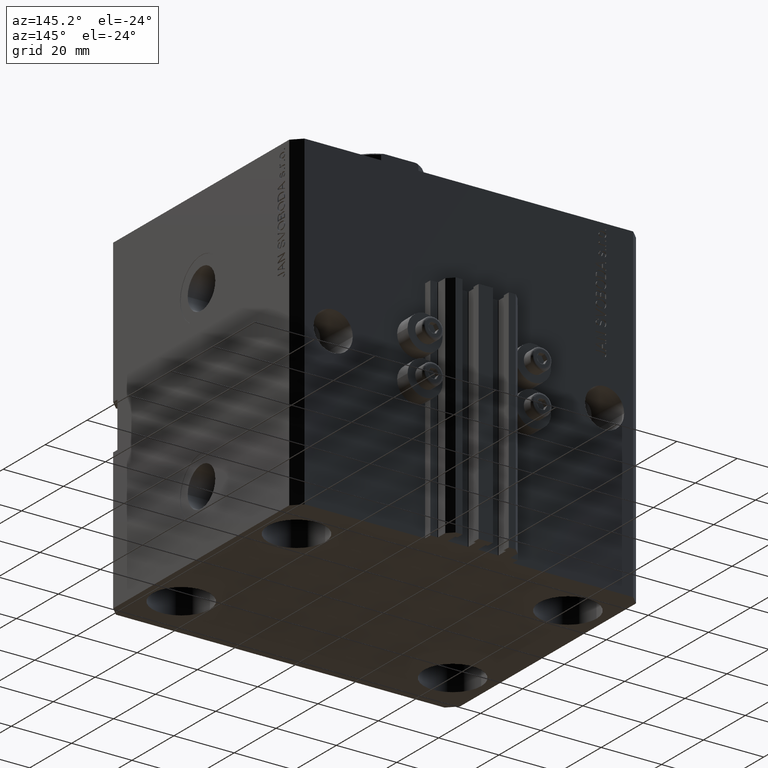
[diagram: clean part render]
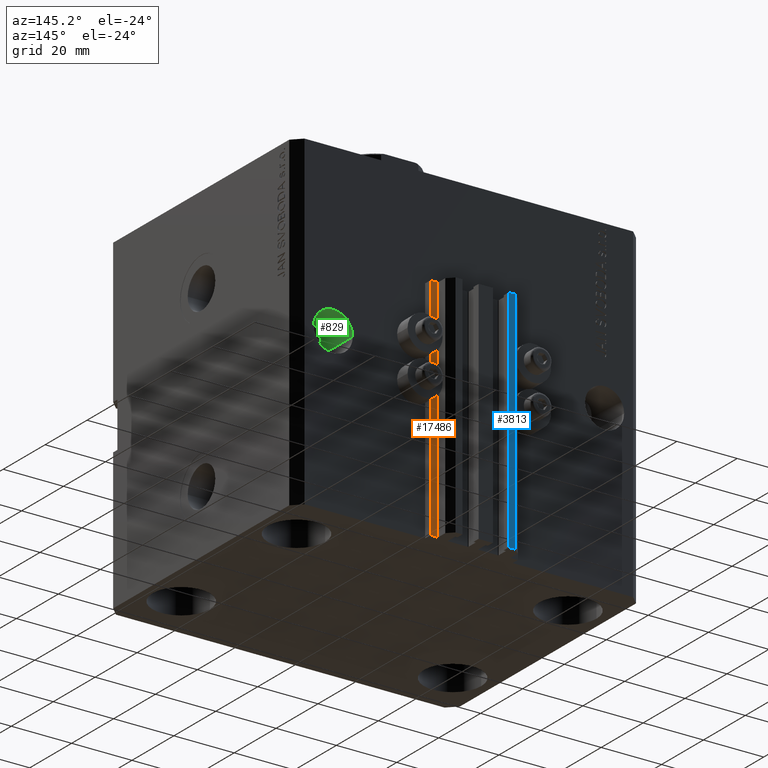
[diagram: same view with three faces highlighted in distinct colors, each labeled with its STEP entity id]
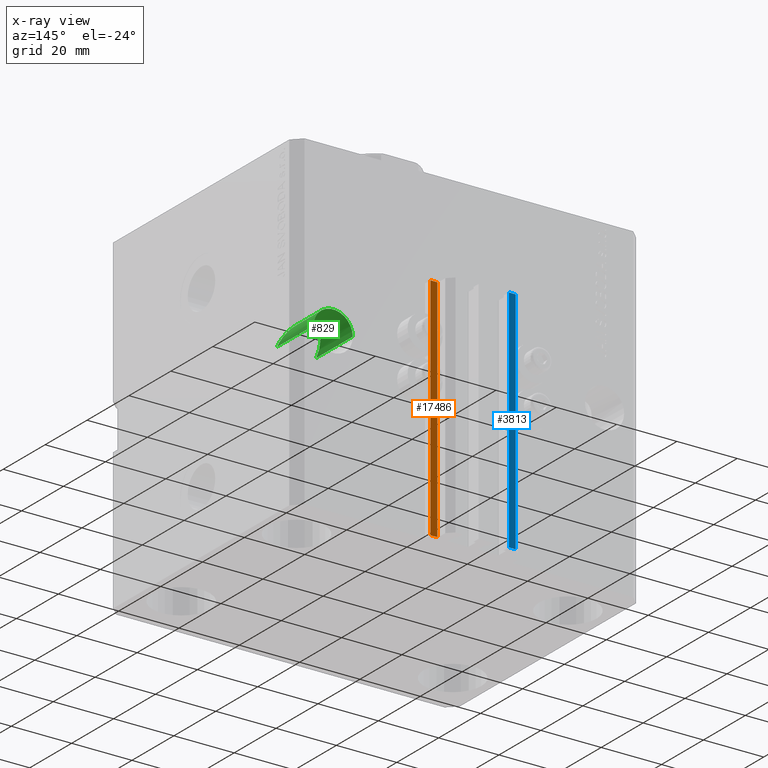
[diagram: x-ray of the same camera — body ghosted, the three highlighted faces saturated]
A machine part, auxiliary view with three faces highlighted in distinct colors.
The next image is the same camera in x-ray (body ghosted, the three faces saturated) — at least one of them is partly hidden behind the body in this view.
Their STEP definitions:

[orange] entity #17486 — the highlighted planar face has unit normal (0, 1, 0).
#149 = DIRECTION ( 'NONE',  ( 0.000000000000000000, 0.000000000000000000, 1.000000000000000000 ) ) ;
#1585 = DIRECTION ( 'NONE',  ( -1.000000000000000000, 0.000000000000000000, 0.000000000000000000 ) ) ;
#2023 = AXIS2_PLACEMENT_3D ( 'NONE', #47372, #28466, #24726 ) ;
#2182 = VERTEX_POINT ( 'NONE', #18523 ) ;
#2944 = VERTEX_POINT ( 'NONE', #44160 ) ;
#5608 = FACE_OUTER_BOUND ( 'NONE', #24364, .T. ) ;
#10474 = DIRECTION ( 'NONE',  ( -1.000000000000000000, 0.000000000000000000, 0.000000000000000000 ) ) ;
#12711 = CARTESIAN_POINT ( 'NONE',  ( 14.49999999999999645, 47.50000000000001421, -109.0000000000000000 ) ) ;
#13397 = ORIENTED_EDGE ( 'NONE', *, *, #26921, .T. ) ;
#13442 = LINE ( 'NONE', #12711, #29292 ) ;
#15659 = VECTOR ( 'NONE', #1585, 1000.000000000000000 ) ;
#17486 = ADVANCED_FACE ( 'NONE', ( #5608 ), #20760, .T. ) ;
#18523 = CARTESIAN_POINT ( 'NONE',  ( 12.20000000000000107, 47.50000000000001421, -33.00000000000000000 ) ) ;
#18813 = LINE ( 'NONE', #29747, #29234 ) ;
#20760 = PLANE ( 'NONE',  #2023 ) ;
#20899 = EDGE_CURVE ( 'NONE', #28664, #2944, #36625, .T. ) ;
#21664 = CARTESIAN_POINT ( 'NONE',  ( 14.49999999999999645, 47.50000000000001421, -33.00000000000000000 ) ) ;
#22314 = EDGE_CURVE ( 'NONE', #25018, #2182, #36367, .T. ) ;
#24022 = ORIENTED_EDGE ( 'NONE', *, *, #20899, .T. ) ;
#24364 = EDGE_LOOP ( 'NONE', ( #30309, #27296, #24022, #13397 ) ) ;
#24457 = CARTESIAN_POINT ( 'NONE',  ( 14.49999999999999645, 47.50000000000001421, -109.0000000000000000 ) ) ;
#24726 = DIRECTION ( 'NONE',  ( 0.000000000000000000, 0.000000000000000000, 1.000000000000000000 ) ) ;
#25018 = VERTEX_POINT ( 'NONE', #45397 ) ;
#26921 = EDGE_CURVE ( 'NONE', #2944, #2182, #18813, .T. ) ;
#27296 = ORIENTED_EDGE ( 'NONE', *, *, #28774, .F. ) ;
#28466 = DIRECTION ( 'NONE',  ( 0.000000000000000000, 1.000000000000000000, -0.000000000000000000 ) ) ;
#28664 = VERTEX_POINT ( 'NONE', #41839 ) ;
#28774 = EDGE_CURVE ( 'NONE', #28664, #25018, #13442, .T. ) ;
#29234 = VECTOR ( 'NONE', #149, 1000.000000000000000 ) ;
#29292 = VECTOR ( 'NONE', #35348, 1000.000000000000000 ) ;
#29747 = CARTESIAN_POINT ( 'NONE',  ( 12.20000000000000107, 47.50000000000001421, -109.0000000000000000 ) ) ;
#30309 = ORIENTED_EDGE ( 'NONE', *, *, #22314, .F. ) ;
#35348 = DIRECTION ( 'NONE',  ( 0.000000000000000000, 0.000000000000000000, 1.000000000000000000 ) ) ;
#36367 = LINE ( 'NONE', #21664, #38741 ) ;
#36625 = LINE ( 'NONE', #24457, #15659 ) ;
#38741 = VECTOR ( 'NONE', #10474, 1000.000000000000000 ) ;
#41839 = CARTESIAN_POINT ( 'NONE',  ( 14.49999999999999645, 47.50000000000001421, -109.0000000000000000 ) ) ;
#44160 = CARTESIAN_POINT ( 'NONE',  ( 12.20000000000000107, 47.50000000000001421, -109.0000000000000000 ) ) ;
#45397 = CARTESIAN_POINT ( 'NONE',  ( 14.49999999999999645, 47.50000000000001421, -33.00000000000000000 ) ) ;
#47372 = CARTESIAN_POINT ( 'NONE',  ( 14.49999999999999645, 47.50000000000001421, -109.0000000000000000 ) ) ;

[blue] entity #3813 — the highlighted planar face has unit normal (0, 1, 0).
#1906 = DIRECTION ( 'NONE',  ( 0.000000000000000000, 1.000000000000000000, -0.000000000000000000 ) ) ;
#2082 = EDGE_CURVE ( 'NONE', #15609, #33903, #47872, .T. ) ;
#2312 = VERTEX_POINT ( 'NONE', #28116 ) ;
#3813 = ADVANCED_FACE ( 'NONE', ( #36227 ), #16574, .T. ) ;
#5648 = ORIENTED_EDGE ( 'NONE', *, *, #45770, .T. ) ;
#5867 = CARTESIAN_POINT ( 'NONE',  ( -7.650000000000002132, 52.99999999999999289, -109.0000000000000000 ) ) ;
#7344 = EDGE_LOOP ( 'NONE', ( #11896, #38226, #5648, #32292 ) ) ;
#8630 = DIRECTION ( 'NONE',  ( 0.000000000000000000, 0.000000000000000000, 1.000000000000000000 ) ) ;
#11896 = ORIENTED_EDGE ( 'NONE', *, *, #24943, .F. ) ;
#13337 = DIRECTION ( 'NONE',  ( -1.000000000000000000, 0.000000000000000000, 0.000000000000000000 ) ) ;
#13565 = VECTOR ( 'NONE', #21747, 1000.000000000000000 ) ;
#15609 = VERTEX_POINT ( 'NONE', #24649 ) ;
#16574 = PLANE ( 'NONE',  #24702 ) ;
#16822 = CARTESIAN_POINT ( 'NONE',  ( -7.650000000000002132, 52.99999999999999289, -33.00000000000000000 ) ) ;
#19209 = VERTEX_POINT ( 'NONE', #44752 ) ;
#21054 = LINE ( 'NONE', #16822, #40407 ) ;
#21747 = DIRECTION ( 'NONE',  ( 0.000000000000000000, 0.000000000000000000, 1.000000000000000000 ) ) ;
#24649 = CARTESIAN_POINT ( 'NONE',  ( -7.650000000000002132, 52.99999999999999289, -109.0000000000000000 ) ) ;
#24702 = AXIS2_PLACEMENT_3D ( 'NONE', #35979, #1906, #8630 ) ;
#24943 = EDGE_CURVE ( 'NONE', #33903, #2312, #21054, .T. ) ;
#28116 = CARTESIAN_POINT ( 'NONE',  ( -10.00000000000000000, 52.99999999999999289, -33.00000000000000000 ) ) ;
#31026 = CARTESIAN_POINT ( 'NONE',  ( -10.00000000000000000, 52.99999999999999289, -109.0000000000000000 ) ) ;
#31603 = CARTESIAN_POINT ( 'NONE',  ( -7.650000000000002132, 52.99999999999999289, -33.00000000000000000 ) ) ;
#32292 = ORIENTED_EDGE ( 'NONE', *, *, #47976, .T. ) ;
#33903 = VERTEX_POINT ( 'NONE', #31603 ) ;
#35010 = DIRECTION ( 'NONE',  ( 0.000000000000000000, 0.000000000000000000, 1.000000000000000000 ) ) ;
#35979 = CARTESIAN_POINT ( 'NONE',  ( -7.650000000000002132, 52.99999999999999289, -109.0000000000000000 ) ) ;
#36227 = FACE_OUTER_BOUND ( 'NONE', #7344, .T. ) ;
#38226 = ORIENTED_EDGE ( 'NONE', *, *, #2082, .F. ) ;
#39216 = CARTESIAN_POINT ( 'NONE',  ( -7.650000000000002132, 52.99999999999999289, -109.0000000000000000 ) ) ;
#39400 = VECTOR ( 'NONE', #35010, 1000.000000000000000 ) ;
#40407 = VECTOR ( 'NONE', #47165, 1000.000000000000000 ) ;
#41751 = LINE ( 'NONE', #31026, #39400 ) ;
#44752 = CARTESIAN_POINT ( 'NONE',  ( -10.00000000000000000, 52.99999999999999289, -109.0000000000000000 ) ) ;
#45770 = EDGE_CURVE ( 'NONE', #15609, #19209, #46658, .T. ) ;
#46658 = LINE ( 'NONE', #39216, #48974 ) ;
#47165 = DIRECTION ( 'NONE',  ( -1.000000000000000000, 0.000000000000000000, 0.000000000000000000 ) ) ;
#47872 = LINE ( 'NONE', #5867, #13565 ) ;
#47976 = EDGE_CURVE ( 'NONE', #19209, #2312, #41751, .T. ) ;
#48974 = VECTOR ( 'NONE', #13337, 1000.000000000000000 ) ;

[green] entity #829 — the highlighted cylindrical surface (edge-blend (fillet) strip) has radius 6.5 mm, axis along (0, -1, 0).
#829 = ADVANCED_FACE ( 'NONE', ( #6948 ), #21609, .F. ) ;
#2113 = EDGE_CURVE ( 'NONE', #39306, #7108, #36039, .T. ) ;
#3624 = CARTESIAN_POINT ( 'NONE',  ( 51.50000000000000711, 53.00000000000003553, -55.00000000000000000 ) ) ;
#4695 = VECTOR ( 'NONE', #35478, 1000.000000000000000 ) ;
#6948 = FACE_OUTER_BOUND ( 'NONE', #33464, .T. ) ;
#7108 = VERTEX_POINT ( 'NONE', #39220 ) ;
#7589 = DIRECTION ( 'NONE',  ( 1.101411730780568590E-16, -1.000000000000000000, -0.000000000000000000 ) ) ;
#7874 = DIRECTION ( 'NONE',  ( -1.000000000000000000, 0.000000000000000000, 0.000000000000000000 ) ) ;
#8110 = DIRECTION ( 'NONE',  ( -2.546383084002639322E-16, 1.000000000000000000, 0.000000000000000000 ) ) ;
#8187 = VECTOR ( 'NONE', #7589, 1000.000000000000000 ) ;
#8500 = AXIS2_PLACEMENT_3D ( 'NONE', #26088, #21369, #25095 ) ;
#13210 = AXIS2_PLACEMENT_3D ( 'NONE', #19304, #8110, #7874 ) ;
#15278 = ORIENTED_EDGE ( 'NONE', *, *, #29417, .F. ) ;
#15546 = CARTESIAN_POINT ( 'NONE',  ( 38.50000000000000711, 45.00000000000002842, -55.00000000000000000 ) ) ;
#18023 = CARTESIAN_POINT ( 'NONE',  ( 38.50000000000000000, 27.50000000000001776, -55.00000000000000000 ) ) ;
#18226 = EDGE_CURVE ( 'NONE', #25210, #42602, #41796, .T. ) ;
#19304 = CARTESIAN_POINT ( 'NONE',  ( 45.00000000000000711, 45.00000000000002842, -55.00000000000000000 ) ) ;
#19811 = LINE ( 'NONE', #31490, #4695 ) ;
#20750 = ORIENTED_EDGE ( 'NONE', *, *, #37140, .T. ) ;
#21369 = DIRECTION ( 'NONE',  ( 1.101411730780568590E-16, -1.000000000000000000, -0.000000000000000000 ) ) ;
#21609 = CYLINDRICAL_SURFACE ( 'NONE', #8500, 6.499999999999999112 ) ;
#25095 = DIRECTION ( 'NONE',  ( 1.000000000000000000, 0.000000000000000000, 0.000000000000000000 ) ) ;
#25210 = VERTEX_POINT ( 'NONE', #15546 ) ;
#26088 = CARTESIAN_POINT ( 'NONE',  ( 45.00000000000000711, 53.00000000000003553, -55.00000000000000000 ) ) ;
#26576 = CARTESIAN_POINT ( 'NONE',  ( 51.50000000000000711, 45.00000000000002842, -55.00000000000000000 ) ) ;
#29417 = EDGE_CURVE ( 'NONE', #25210, #39306, #19811, .T. ) ;
#31490 = CARTESIAN_POINT ( 'NONE',  ( 38.50000000000000711, 53.00000000000003553, -55.00000000000000000 ) ) ;
#33204 = CARTESIAN_POINT ( 'NONE',  ( 38.49999999999999289, 40.50000000000000711, -42.00000000000000000 ) ) ;
#33464 = EDGE_LOOP ( 'NONE', ( #15278, #45757, #20750, #49031 ) ) ;
#35478 = DIRECTION ( 'NONE',  ( 1.101411730780568590E-16, -1.000000000000000000, -0.000000000000000000 ) ) ;
#36039 =( BOUNDED_CURVE ( )  B_SPLINE_CURVE ( 3, ( #18023, #33204, #48365, #48118 ),
 .UNSPECIFIED., .F., .T. ) 
 B_SPLINE_CURVE_WITH_KNOTS ( ( 4, 4 ),
 ( 4.712388980384689674, 7.853981633974482790 ),
 .UNSPECIFIED. ) 
 CURVE ( )  GEOMETRIC_REPRESENTATION_ITEM ( )  RATIONAL_B_SPLINE_CURVE ( ( 1.000000000000000000, 0.3333333333333333703, 0.3333333333333333703, 1.000000000000000000 ) ) 
 REPRESENTATION_ITEM ( '' )  );
#37140 = EDGE_CURVE ( 'NONE', #42602, #7108, #37688, .T. ) ;
#37688 = LINE ( 'NONE', #3624, #8187 ) ;
#39220 = CARTESIAN_POINT ( 'NONE',  ( 51.50000000000000000, 27.50000000000001776, -55.00000000000000000 ) ) ;
#39306 = VERTEX_POINT ( 'NONE', #45503 ) ;
#41796 = CIRCLE ( 'NONE', #13210, 6.499999999999999112 ) ;
#42602 = VERTEX_POINT ( 'NONE', #26576 ) ;
#45503 = CARTESIAN_POINT ( 'NONE',  ( 38.50000000000000000, 27.50000000000001776, -55.00000000000000000 ) ) ;
#45757 = ORIENTED_EDGE ( 'NONE', *, *, #18226, .T. ) ;
#48118 = CARTESIAN_POINT ( 'NONE',  ( 51.50000000000000000, 27.50000000000001776, -55.00000000000000000 ) ) ;
#48365 = CARTESIAN_POINT ( 'NONE',  ( 51.50000000000000000, 40.50000000000001421, -42.00000000000000000 ) ) ;
#49031 = ORIENTED_EDGE ( 'NONE', *, *, #2113, .F. ) ;